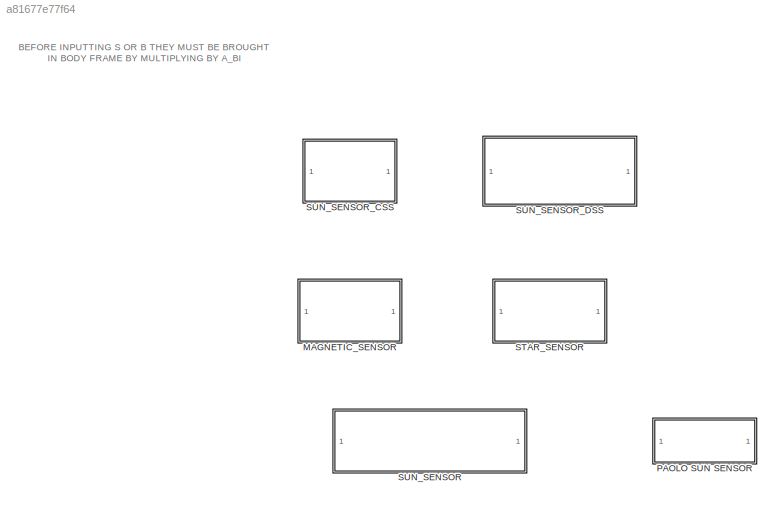
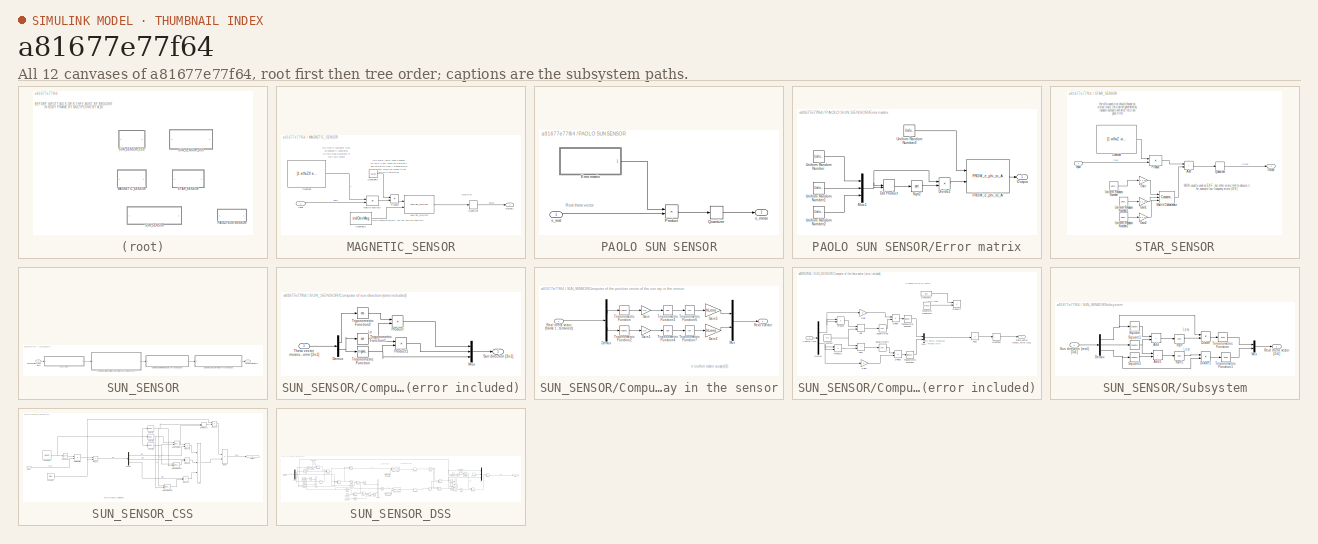
[diagram: thumbnail index - all 12 canvases of the model, root first then tree order]
MODEL slx_a81677e77f64
KIND library
CONFIG AbsTol = auto
CONFIG EnableMultiTasking = off
CONFIG FixedStep = auto
CONFIG MaxStep = auto
CONFIG MinStep = auto
CONFIG RelTol = 1e-3
CONFIG SampleTimeConstraint = Unconstrained
CONFIG SolverName = VariableStepAuto
CONFIG StartTime = 0.0
CONFIG StopTime = 10.0
BLOCK [SubSystem] MAGNETIC_SENSOR
  Ports = [1, 1]
  RequestExecContextInheritance = off
BLOCK [Constant] MAGNETIC_SENSOR/Constant
  Value = [1 alfaZX alfaYX; alfaZY 1 alfaXY; alfaYZ alfaXZ 1]
BLOCK [Constant] MAGNETIC_SENSOR/Constant1
  Value = stdDevMag
BLOCK [Constant] MAGNETIC_SENSOR/Constant2
  Value = cMag
BLOCK [Inport] MAGNETIC_SENSOR/Input
  IconDisplay = Signal name
BLOCK [Product] MAGNETIC_SENSOR/Matrix Multiply
  Multiplication = Matrix(*)
  Ports = [2, 1]
BLOCK [Outport] MAGNETIC_SENSOR/Output1
  IconDisplay = Signal name
BLOCK [Product] MAGNETIC_SENSOR/Product
  Ports = [2, 1]
BLOCK [Quantizer] MAGNETIC_SENSOR/Quantizer
  QuantizationInterval = resMag
BLOCK [Reference] MAGNETIC_SENSOR/WHITE_NOISE  REF=ERRORS/WHITE_NOISE
  Ports = [2, 1]
  SourceBlock = ERRORS/WHITE_NOISE
  SourceProductName = Errors
  SourceType = SubSystem
BLOCK [SubSystem] PAOLO SUN SENSOR
  Ports = [1, 1]
  RequestExecContextInheritance = off
BLOCK [SubSystem] PAOLO SUN SENSOR/Error matrix
  Ports = [0, 1]
  RequestExecContextInheritance = off
BLOCK [Product] PAOLO SUN SENSOR/Error matrix/Divide2
  Inputs = */
  Ports = [2, 1]
BLOCK [DotProduct] PAOLO SUN SENSOR/Error matrix/Dot Product
  OutDataTypeStr = Inherit: Inherit via internal rule
BLOCK [Reference] PAOLO SUN SENSOR/Error matrix/FROM_e_phi_to_A  REF=kinematic_transform/FROM_e_phi_to_A  (lib defined in slx_aea597a4063a)
  Ports = [2, 1]
  SourceBlock = kinematic_transform/FROM_e_phi_to_A
  SourceType = SubSystem
BLOCK [Mux] PAOLO SUN SENSOR/Error matrix/Mux1
  DisplayOption = bar
  Inputs = 3
  Ports = [3, 1]
BLOCK [Outport] PAOLO SUN SENSOR/Error matrix/Output
BLOCK [Sqrt] PAOLO SUN SENSOR/Error matrix/Sqrt2
BLOCK [UniformRandomNumber] PAOLO SUN SENSOR/Error matrix/Uniform Random Number
  Maximum = 10
  Minimum = -10
  SampleTime = 0.1
  Seed = 1
BLOCK [UniformRandomNumber] PAOLO SUN SENSOR/Error matrix/Uniform Random Number1
  Maximum = 10
  Minimum = -10
  SampleTime = 0.1
  Seed = 2
BLOCK [UniformRandomNumber] PAOLO SUN SENSOR/Error matrix/Uniform Random Number2
  Maximum = 10
  Minimum = -10
  SampleTime = 0.1
  Seed = 3
BLOCK [UniformRandomNumber] PAOLO SUN SENSOR/Error matrix/Uniform Random Number3
  Maximum = angleSun
  Minimum = -angleSun
  SampleTime = 0.1
  Seed = 10
BLOCK [Product] PAOLO SUN SENSOR/Product
  Multiplication = Matrix(*)
  Ports = [2, 1]
BLOCK [Quantizer] PAOLO SUN SENSOR/Quantizer
  QuantizationInterval = resSun
BLOCK [Outport] PAOLO SUN SENSOR/s_meas
BLOCK [Inport] PAOLO SUN SENSOR/s_real
BLOCK [SubSystem] STAR_SENSOR
  Ports = [1, 1]
  RequestExecContextInheritance = off
BLOCK [Sum] STAR_SENSOR/Add
  IconShape = rectangular
  Ports = [2, 1]
BLOCK [Constant] STAR_SENSOR/Constant
  Value = [1 alfaZ -alfaY; -alfaZ 1 alfaX; alfaY -alfaX 1]
BLOCK [Gain] STAR_SENSOR/Gain
  Gain = [1 1 1]
BLOCK [Gain] STAR_SENSOR/Gain1
  Gain = [1 1 1]
BLOCK [Gain] STAR_SENSOR/Gain2
  Gain = [1 1 1]
BLOCK [Inport] STAR_SENSOR/Input
  IconDisplay = Signal name
BLOCK [Concatenate] STAR_SENSOR/Matrix Concatenate
  ConcatenateDimension = 2
  Mode = Multidimensional array
  NumInputs = 3
  Ports = [3, 1]
BLOCK [Outport] STAR_SENSOR/Output
  IconDisplay = Signal name
BLOCK [Product] STAR_SENSOR/Product
  Multiplication = Matrix(*)
  Ports = [2, 1]
BLOCK [Quantizer] STAR_SENSOR/Quantizer
  QuantizationInterval = resStar
BLOCK [UniformRandomNumber] STAR_SENSOR/Uniform Random Number
  Maximum = maxStar
  Minimum = -maxStar
  SampleTime = 0.1
  Seed = 10
BLOCK [UniformRandomNumber] STAR_SENSOR/Uniform Random Number1
  Maximum = maxStar
  Minimum = -maxStar
  SampleTime = 0.1
  Seed = 8
BLOCK [UniformRandomNumber] STAR_SENSOR/Uniform Random Number2
  Maximum = maxStar
  Minimum = -maxStar
  SampleTime = 0.1
BLOCK [SubSystem] SUN_SENSOR
  Ports = [1, 1]
  RequestExecContextInheritance = off
BLOCK [SubSystem] SUN_SENSOR/Computer of sun direction (error included)
  Ports = [1, 1]
  RequestExecContextInheritance = off
BLOCK [Demux] SUN_SENSOR/Computer of sun direction (error included)/Demux
  Outputs = 2
  Ports = [1, 2]
BLOCK [Mux] SUN_SENSOR/Computer of sun direction (error included)/Mux
  DisplayOption = bar
  Inputs = 3
  Ports = [3, 1]
BLOCK [Product] SUN_SENSOR/Computer of sun direction (error included)/Product
  Ports = [2, 1]
BLOCK [Product] SUN_SENSOR/Computer of sun direction (error included)/Product1
  Ports = [2, 1]
BLOCK [Outport] SUN_SENSOR/Computer of sun direction (error included)/Sun direction [3x1]
BLOCK [Inport] SUN_SENSOR/Computer of sun direction (error included)/Theta vector measured with error [2x1]
BLOCK [Trigonometry] SUN_SENSOR/Computer of sun direction (error included)/Trigonometric Function
  Ports = [1, 1]
BLOCK [Trigonometry] SUN_SENSOR/Computer of sun direction (error included)/Trigonometric Function1
  Operator = cos
  Ports = [1, 1]
BLOCK [Trigonometry] SUN_SENSOR/Computer of sun direction (error included)/Trigonometric Function2
  Operator = cos
  Ports = [1, 1]
BLOCK [SubSystem] SUN_SENSOR/Computer of the position vector of the sun ray in the sensor
  Ports = [1, 1]
  RequestExecContextInheritance = off
BLOCK [Demux] SUN_SENSOR/Computer of the position vector of the sun ray in the sensor/Demux
  Outputs = 2
  Ports = [1, 2]
BLOCK [Gain] SUN_SENSOR/Computer of the position vector of the sun ray in the sensor/Gain
  Gain = 1/n
BLOCK [Gain] SUN_SENSOR/Computer of the position vector of the sun ray in the sensor/Gain1
  Gain = 1/n
BLOCK [Gain] SUN_SENSOR/Computer of the position vector of the sun ray in the sensor/Gain2
  Gain = hLens
BLOCK [Gain] SUN_SENSOR/Computer of the position vector of the sun ray in the sensor/Gain3
  Gain = hLens
BLOCK [Mux] SUN_SENSOR/Computer of the position vector of the sun ray in the sensor/Mux
  DisplayOption = bar
  Inputs = 2
  Ports = [2, 1]
BLOCK [Inport] SUN_SENSOR/Computer of the position vector of the sun ray in the sensor/Real theta vector (frame to be determined)
BLOCK [Outport] SUN_SENSOR/Computer of the position vector of the sun ray in the sensor/Real x vector
BLOCK [Trigonometry] SUN_SENSOR/Computer of the position vector of the sun ray in the sensor/Trigonometric Function
  Ports = [1, 1]
BLOCK [Trigonometry] SUN_SENSOR/Computer of the position vector of the sun ray in the sensor/Trigonometric Function2
  Ports = [1, 1]
BLOCK [Trigonometry] SUN_SENSOR/Computer of the position vector of the sun ray in the sensor/Trigonometric Function3
  Operator = asin
  Ports = [1, 1]
BLOCK [Trigonometry] SUN_SENSOR/Computer of the position vector of the sun ray in the sensor/Trigonometric Function4
  Operator = asin
  Ports = [1, 1]
BLOCK [Trigonometry] SUN_SENSOR/Computer of the position vector of the sun ray in the sensor/Trigonometric Function6
  Operator = tan
  Ports = [1, 1]
BLOCK [Trigonometry] SUN_SENSOR/Computer of the position vector of the sun ray in the sensor/Trigonometric Function7
  Operator = tan
  Ports = [1, 1]
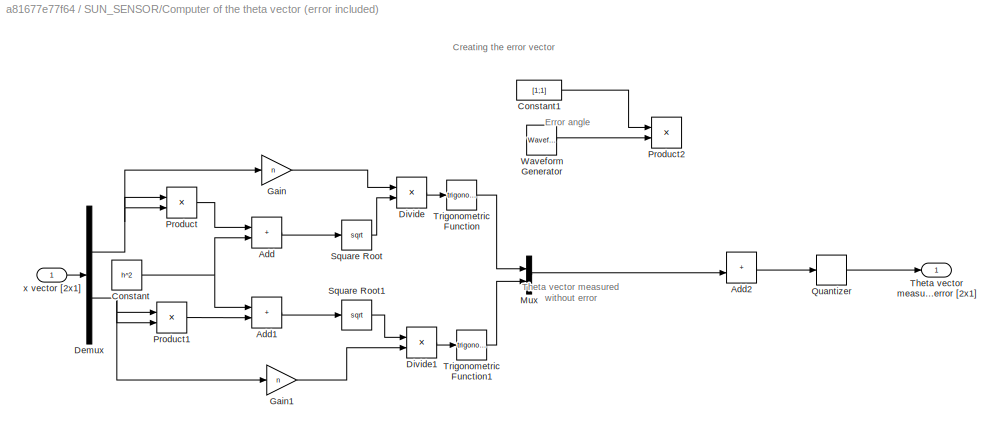
BLOCK [SubSystem] SUN_SENSOR/Computer of the theta vector (error included)
  Ports = [1, 1]
  RequestExecContextInheritance = off
BLOCK [Sum] SUN_SENSOR/Computer of the theta vector (error included)/Add
  IconShape = rectangular
  Ports = [2, 1]
BLOCK [Sum] SUN_SENSOR/Computer of the theta vector (error included)/Add1
  IconShape = rectangular
  Ports = [2, 1]
BLOCK [Sum] SUN_SENSOR/Computer of the theta vector (error included)/Add2
  IconShape = rectangular
  Ports = [2, 1]
BLOCK [Constant] SUN_SENSOR/Computer of the theta vector (error included)/Constant
  Value = h^2
BLOCK [Constant] SUN_SENSOR/Computer of the theta vector (error included)/Constant1
  Value = [1;1]
BLOCK [Demux] SUN_SENSOR/Computer of the theta vector (error included)/Demux
  Outputs = 2
  Ports = [1, 2]
BLOCK [Product] SUN_SENSOR/Computer of the theta vector (error included)/Divide
  Inputs = */
  Ports = [2, 1]
BLOCK [Product] SUN_SENSOR/Computer of the theta vector (error included)/Divide1
  Inputs = /*
  Ports = [2, 1]
BLOCK [Gain] SUN_SENSOR/Computer of the theta vector (error included)/Gain
  Gain = n
BLOCK [Gain] SUN_SENSOR/Computer of the theta vector (error included)/Gain1
  Gain = n
BLOCK [Mux] SUN_SENSOR/Computer of the theta vector (error included)/Mux
  DisplayOption = bar
  Inputs = 2
  Ports = [2, 1]
BLOCK [Product] SUN_SENSOR/Computer of the theta vector (error included)/Product
  Ports = [2, 1]
BLOCK [Product] SUN_SENSOR/Computer of the theta vector (error included)/Product1
  Ports = [2, 1]
BLOCK [Product] SUN_SENSOR/Computer of the theta vector (error included)/Product2
  Ports = [2, 1]
BLOCK [Quantizer] SUN_SENSOR/Computer of the theta vector (error included)/Quantizer
  QuantizationInterval = res
BLOCK [Sqrt] SUN_SENSOR/Computer of the theta vector (error included)/Square Root
BLOCK [Sqrt] SUN_SENSOR/Computer of the theta vector (error included)/Square Root1
BLOCK [Outport] SUN_SENSOR/Computer of the theta vector (error included)/Theta vector measured with error [2x1]
BLOCK [Trigonometry] SUN_SENSOR/Computer of the theta vector (error included)/Trigonometric Function
  Ports = [1, 1]
BLOCK [Trigonometry] SUN_SENSOR/Computer of the theta vector (error included)/Trigonometric Function1
  Ports = [1, 1]
BLOCK [Reference] SUN_SENSOR/Computer of the theta vector (error included)/Waveform Generator  REF=simulink/Sources/Waveform
Generator
  Ports = [0, 1]
  SourceBlock = simulink/Sources/Waveform\nGenerator
  SourceProductBaseCode = SL
  SourceType = WaveformGenerator
BLOCK [Inport] SUN_SENSOR/Computer of the theta vector (error included)/x vector [2x1]
BLOCK [SubSystem] SUN_SENSOR/Subsystem
  Ports = [1, 1]
  RequestExecContextInheritance = off
BLOCK [Sum] SUN_SENSOR/Subsystem/Add
  IconShape = rectangular
  Ports = [2, 1]
BLOCK [Sum] SUN_SENSOR/Subsystem/Add1
  IconShape = rectangular
  Ports = [2, 1]
BLOCK [Demux] SUN_SENSOR/Subsystem/Demux
  Outputs = 3
  Ports = [1, 3]
BLOCK [Product] SUN_SENSOR/Subsystem/Divide
  Inputs = /*
  Ports = [2, 1]
BLOCK [Product] SUN_SENSOR/Subsystem/Divide1
  Inputs = /*
  Ports = [2, 1]
BLOCK [Mux] SUN_SENSOR/Subsystem/Mux
  DisplayOption = bar
  Inputs = 2
  Ports = [2, 1]
BLOCK [Outport] SUN_SENSOR/Subsystem/Real theta vector [2x1]
BLOCK [Sqrt] SUN_SENSOR/Subsystem/Sqrt
BLOCK [Sqrt] SUN_SENSOR/Subsystem/Sqrt1
BLOCK [Math] SUN_SENSOR/Subsystem/Square
  Operator = square
  Ports = [1, 1]
BLOCK [Math] SUN_SENSOR/Subsystem/Square1
  Operator = square
  Ports = [1, 1]
BLOCK [Math] SUN_SENSOR/Subsystem/Square2
  Operator = square
  Ports = [1, 1]
BLOCK [Inport] SUN_SENSOR/Subsystem/Sun direction (real) [3x1]
BLOCK [Trigonometry] SUN_SENSOR/Subsystem/Trigonometric Function
  Operator = acos
  Ports = [1, 1]
BLOCK [Trigonometry] SUN_SENSOR/Subsystem/Trigonometric Function1
  Operator = acos
  Ports = [1, 1]
BLOCK [Inport] SUN_SENSOR/Sun direction (real) [3x1]
BLOCK [Outport] SUN_SENSOR/Sun direction [3x1]
BLOCK [SubSystem] SUN_SENSOR_CSS
  Ports = [1, 1]
  RequestExecContextInheritance = off
BLOCK [Sum] SUN_SENSOR_CSS/Add
  IconShape = rectangular
  Inputs = +++
  Ports = [3, 1]
BLOCK [Constant] SUN_SENSOR_CSS/Constant
  Value = Imax
BLOCK [Constant] SUN_SENSOR_CSS/Constant1
  Value = Nsens
BLOCK [Reference] SUN_SENSOR_CSS/Cross Product  REF=matrix_library/Cross Product
  Ports = [2, 1]
  SourceBlock = matrix_library/Cross Product
  SourceProductBaseCode = SL
  SourceType = CrossProduct
BLOCK [Reference] SUN_SENSOR_CSS/Cross Product1  REF=matrix_library/Cross Product
  Ports = [2, 1]
  SourceBlock = matrix_library/Cross Product
  SourceProductBaseCode = SL
  SourceType = CrossProduct
BLOCK [Reference] SUN_SENSOR_CSS/Cross Product2  REF=matrix_library/Cross Product
  Ports = [2, 1]
  SourceBlock = matrix_library/Cross Product
  SourceProductBaseCode = SL
  SourceType = CrossProduct
BLOCK [Demux] SUN_SENSOR_CSS/Demux
  Outputs = 3
  Ports = [1, 3]
BLOCK [Product] SUN_SENSOR_CSS/Divide
  Inputs = /*
  Ports = [2, 1]
BLOCK [DotProduct] SUN_SENSOR_CSS/Dot Product
  OutDataTypeStr = Inherit: Inherit via internal rule
BLOCK [Inport] SUN_SENSOR_CSS/Input
  IconDisplay = Signal name
BLOCK [Product] SUN_SENSOR_CSS/Matrix Multiply
  Multiplication = Matrix(*)
  Ports = [2, 1]
BLOCK [Outport] SUN_SENSOR_CSS/Output
  IconDisplay = Signal name
BLOCK [Product] SUN_SENSOR_CSS/Product
  Ports = [2, 1]
BLOCK [Product] SUN_SENSOR_CSS/Product1
  Ports = [2, 1]
BLOCK [Product] SUN_SENSOR_CSS/Product2
  Ports = [2, 1]
BLOCK [Product] SUN_SENSOR_CSS/Product3
  Ports = [2, 1]
BLOCK [Product] SUN_SENSOR_CSS/Product4
  Ports = [2, 1]
BLOCK [Selector] SUN_SENSOR_CSS/Selector
  IndexOptions = Select all,Index vector (dialog)
  Indices = 1,1
  InputPortWidth = 3
  NumberOfDimensions = 2
  OutputSizes = 1,1
  Ports = [1, 1]
BLOCK [Selector] SUN_SENSOR_CSS/Selector1
  IndexOptions = Select all,Index vector (dialog)
  Indices = 1,2
  InputPortWidth = 3
  NumberOfDimensions = 2
  OutputSizes = 1,1
  Ports = [1, 1]
BLOCK [Selector] SUN_SENSOR_CSS/Selector2
  IndexOptions = Select all,Index vector (dialog)
  Indices = 1,3
  InputPortWidth = 3
  NumberOfDimensions = 2
  OutputSizes = 1,1
  Ports = [1, 1]
BLOCK [Math] SUN_SENSOR_CSS/Transpose
  Operator = transpose
  Ports = [1, 1]
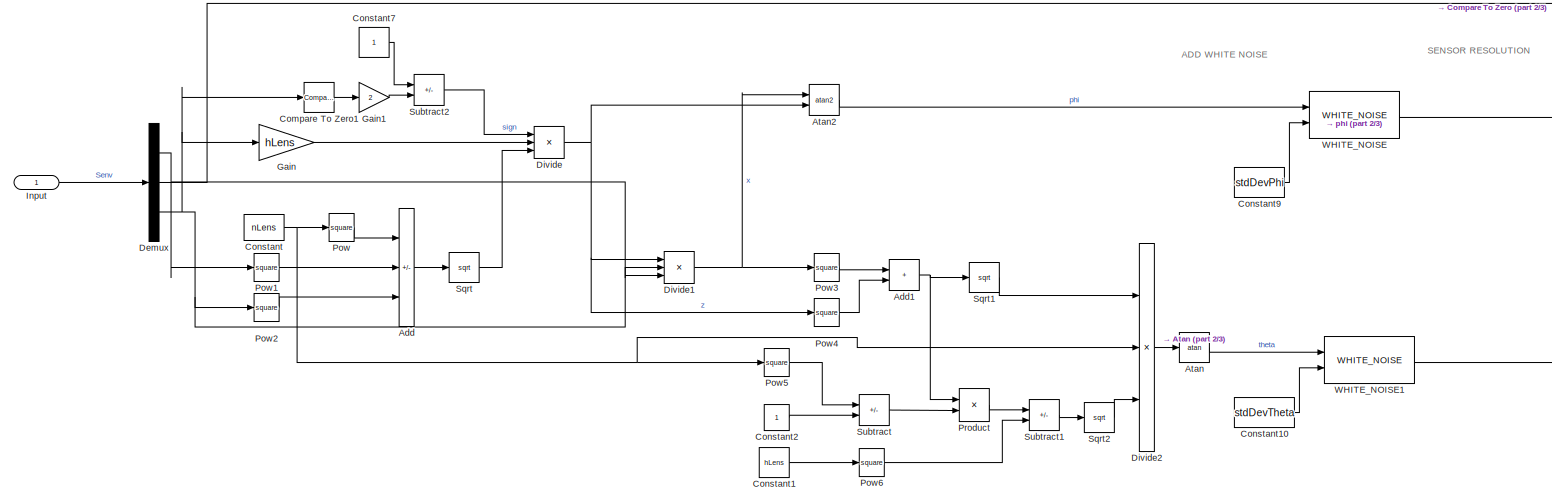
[diagram: SUN_SENSOR_DSS - part 1/3, left side, full height]
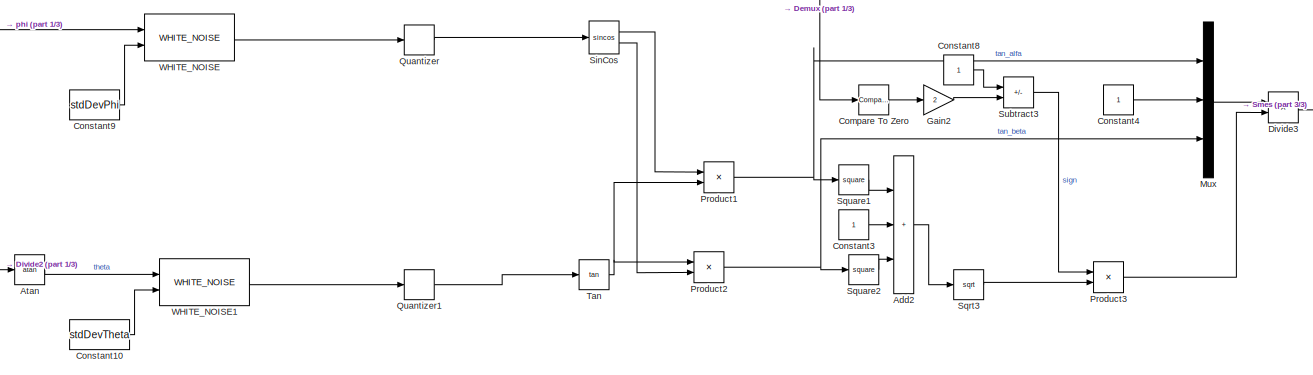
[diagram: SUN_SENSOR_DSS - part 2/3, central region]
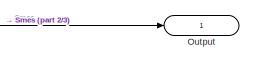
[diagram: SUN_SENSOR_DSS - part 3/3, middle right region]
BLOCK [SubSystem] SUN_SENSOR_DSS
  Ports = [1, 1]
  RequestExecContextInheritance = off
BLOCK [Sum] SUN_SENSOR_DSS/Add
  IconShape = rectangular
  Inputs = +--
  Ports = [3, 1]
BLOCK [Sum] SUN_SENSOR_DSS/Add1
  IconShape = rectangular
  Ports = [2, 1]
BLOCK [Sum] SUN_SENSOR_DSS/Add2
  IconShape = rectangular
  Inputs = +++
  Ports = [3, 1]
BLOCK [Trigonometry] SUN_SENSOR_DSS/Atan
  Operator = atan
  Ports = [1, 1]
BLOCK [Trigonometry] SUN_SENSOR_DSS/Atan2
  Operator = atan2
  Ports = [2, 1]
BLOCK [Reference] SUN_SENSOR_DSS/Compare To Zero  REF=simulink/Logic and Bit
Operations/Compare
To Zero
  Ports = [1, 1]
  SourceBlock = simulink/Logic and Bit\nOperations/Compare\nTo Zero
  SourceProductBaseCode = SL
  SourceType = Compare To Zero
BLOCK [Reference] SUN_SENSOR_DSS/Compare To Zero1  REF=simulink/Logic and Bit
Operations/Compare
To Zero
  Ports = [1, 1]
  SourceBlock = simulink/Logic and Bit\nOperations/Compare\nTo Zero
  SourceProductBaseCode = SL
  SourceType = Compare To Zero
BLOCK [Constant] SUN_SENSOR_DSS/Constant
  Value = nLens
BLOCK [Constant] SUN_SENSOR_DSS/Constant1
  Value = hLens
BLOCK [Constant] SUN_SENSOR_DSS/Constant10
  Value = stdDevTheta
BLOCK [Constant] SUN_SENSOR_DSS/Constant2
BLOCK [Constant] SUN_SENSOR_DSS/Constant3
BLOCK [Constant] SUN_SENSOR_DSS/Constant4
BLOCK [Constant] SUN_SENSOR_DSS/Constant7
BLOCK [Constant] SUN_SENSOR_DSS/Constant8
BLOCK [Constant] SUN_SENSOR_DSS/Constant9
  Value = stdDevPhi
BLOCK [Demux] SUN_SENSOR_DSS/Demux
  Outputs = 3
  Ports = [1, 3]
BLOCK [Product] SUN_SENSOR_DSS/Divide
  Inputs = **/
  Ports = [3, 1]
BLOCK [Product] SUN_SENSOR_DSS/Divide1
  Inputs = **/
  Ports = [3, 1]
BLOCK [Product] SUN_SENSOR_DSS/Divide2
  Inputs = **/
  Ports = [3, 1]
BLOCK [Product] SUN_SENSOR_DSS/Divide3
  Inputs = */
  Ports = [2, 1]
BLOCK [Gain] SUN_SENSOR_DSS/Gain
  Gain = hLens
BLOCK [Gain] SUN_SENSOR_DSS/Gain1
  Gain = 2
BLOCK [Gain] SUN_SENSOR_DSS/Gain2
  Gain = 2
BLOCK [Inport] SUN_SENSOR_DSS/Input
  IconDisplay = Signal name
BLOCK [Mux] SUN_SENSOR_DSS/Mux
  DisplayOption = bar
  Inputs = 3
  Ports = [3, 1]
BLOCK [Outport] SUN_SENSOR_DSS/Output
  IconDisplay = Signal name
BLOCK [Math] SUN_SENSOR_DSS/Pow
  Operator = square
  Ports = [1, 1]
  RndMeth = Zero
  SignedPower = on
BLOCK [Math] SUN_SENSOR_DSS/Pow1
  Operator = square
  Ports = [1, 1]
  RndMeth = Zero
  SignedPower = on
BLOCK [Math] SUN_SENSOR_DSS/Pow2
  Operator = square
  Ports = [1, 1]
  RndMeth = Zero
  SignedPower = on
BLOCK [Math] SUN_SENSOR_DSS/Pow3
  Operator = square
  Ports = [1, 1]
  RndMeth = Zero
  SignedPower = on
BLOCK [Math] SUN_SENSOR_DSS/Pow4
  Operator = square
  Ports = [1, 1]
  RndMeth = Zero
  SignedPower = on
BLOCK [Math] SUN_SENSOR_DSS/Pow5
  Operator = square
  Ports = [1, 1]
  RndMeth = Zero
  SignedPower = on
BLOCK [Math] SUN_SENSOR_DSS/Pow6
  Operator = square
  Ports = [1, 1]
  RndMeth = Zero
  SignedPower = on
BLOCK [Product] SUN_SENSOR_DSS/Product
  Ports = [2, 1]
BLOCK [Product] SUN_SENSOR_DSS/Product1
  Ports = [2, 1]
BLOCK [Product] SUN_SENSOR_DSS/Product2
  Ports = [2, 1]
BLOCK [Product] SUN_SENSOR_DSS/Product3
  Ports = [2, 1]
BLOCK [Quantizer] SUN_SENSOR_DSS/Quantizer
  QuantizationInterval = resPhi
BLOCK [Quantizer] SUN_SENSOR_DSS/Quantizer1
  QuantizationInterval = resTheta
BLOCK [Trigonometry] SUN_SENSOR_DSS/SinCos
  Operator = sincos
  Ports = [1, 2]
BLOCK [Sqrt] SUN_SENSOR_DSS/Sqrt
BLOCK [Sqrt] SUN_SENSOR_DSS/Sqrt1
BLOCK [Sqrt] SUN_SENSOR_DSS/Sqrt2
BLOCK [Sqrt] SUN_SENSOR_DSS/Sqrt3
BLOCK [Math] SUN_SENSOR_DSS/Square1
  Operator = square
  Ports = [1, 1]
BLOCK [Math] SUN_SENSOR_DSS/Square2
  Operator = square
  Ports = [1, 1]
BLOCK [Sum] SUN_SENSOR_DSS/Subtract
  IconShape = rectangular
  Inputs = +-
  Ports = [2, 1]
BLOCK [Sum] SUN_SENSOR_DSS/Subtract1
  IconShape = rectangular
  Inputs = -+
  Ports = [2, 1]
BLOCK [Sum] SUN_SENSOR_DSS/Subtract2
  IconShape = rectangular
  Inputs = -+
  Ports = [2, 1]
BLOCK [Sum] SUN_SENSOR_DSS/Subtract3
  IconShape = rectangular
  Inputs = -+
  Ports = [2, 1]
BLOCK [Trigonometry] SUN_SENSOR_DSS/Tan
  Operator = tan
  Ports = [1, 1]
BLOCK [Reference] SUN_SENSOR_DSS/WHITE_NOISE  REF=ERRORS/WHITE_NOISE
  Ports = [2, 1]
  SourceBlock = ERRORS/WHITE_NOISE
  SourceProductName = Errors
  SourceType = SubSystem
BLOCK [Reference] SUN_SENSOR_DSS/WHITE_NOISE1  REF=ERRORS/WHITE_NOISE
  Ports = [2, 1]
  SourceBlock = ERRORS/WHITE_NOISE
  SourceProductName = Errors
  SourceType = SubSystem
ANNOTATION (root): BEFORE INPUTTING S OR B THEY MUST BE BROUGHT IN BODY FRAME BY MULTIPLYING BY A_BI
ANNOTATION MAGNETIC_SENSOR: resolution
ANNOTATION MAGNETIC_SENSOR: this matrix represent cross orthogonality generated by the wrong placement of the 3 axis sensor
ANNOTATION MAGNETIC_SENSOR: this scalar factor should depend on the B itself showing hysteresis and saturation->really magnetometer parameter should be chosen to not arrive to saturation
ANNOTATION MAGNETIC_SENSOR: white gaussian noise? I am not sure we need this
ANNOTATION PAOLO SUN SENSOR: Real theta vector
ANNOTATION STAR_SENSOR: WGN usually used on EKF, but other errors tend to obscure it for example low frequency errors (LFE)
ANNOTATION STAR_SENSOR: the alfa quantities should change as a slow walk, this can be generated by random numbers and after this low pass filter
ANNOTATION SUN_SENSOR/Computer of sun direction (error included): Lp
ANNOTATION SUN_SENSOR/Computer of the position vector of the sun ray in the sensor: n is often taken as sqrt(3)
ANNOTATION SUN_SENSOR/Computer of the theta vector (error included): Creating the error vector
ANNOTATION SUN_SENSOR/Computer of the theta vector (error included): Error angle
ANNOTATION SUN_SENSOR/Computer of the theta vector (error included): Theta vector measured without error
ANNOTATION SUN_SENSOR/Subsystem: Lpxy
ANNOTATION SUN_SENSOR/Subsystem: Lpyz
ANNOTATION SUN_SENSOR_CSS: albedo can introduce low filter errors
ANNOTATION SUN_SENSOR_DSS: ADD WHITE NOISE
ANNOTATION SUN_SENSOR_DSS: SENSOR RESOLUTION
LINE MAGNETIC_SENSOR/Constant1:1 -> MAGNETIC_SENSOR/WHITE_NOISE:2
LINE MAGNETIC_SENSOR/Constant2:1 -> MAGNETIC_SENSOR/Product:1
LINE MAGNETIC_SENSOR/Constant:1 -> MAGNETIC_SENSOR/Matrix Multiply:1
LINE MAGNETIC_SENSOR/Input:1 -> MAGNETIC_SENSOR/Matrix Multiply:2
LINE MAGNETIC_SENSOR/Matrix Multiply:1 -> MAGNETIC_SENSOR/Product:2
LINE MAGNETIC_SENSOR/Product:1 -> MAGNETIC_SENSOR/WHITE_NOISE:1
LINE MAGNETIC_SENSOR/Quantizer:1 -> MAGNETIC_SENSOR/Output1:1
LINE MAGNETIC_SENSOR/WHITE_NOISE:1 -> MAGNETIC_SENSOR/Quantizer:1
LINE PAOLO SUN SENSOR/Error matrix/Divide2:1 -> PAOLO SUN SENSOR/Error matrix/FROM_e_phi_to_A:2
LINE PAOLO SUN SENSOR/Error matrix/Dot Product:1 -> PAOLO SUN SENSOR/Error matrix/Sqrt2:1
LINE PAOLO SUN SENSOR/Error matrix/FROM_e_phi_to_A:1 -> PAOLO SUN SENSOR/Error matrix/Output:1
NET PAOLO SUN SENSOR/Error matrix/Mux1:1 -> PAOLO SUN SENSOR/Error matrix/Divide2:1, PAOLO SUN SENSOR/Error matrix/Dot Product:1, PAOLO SUN SENSOR/Error matrix/Dot Product:2
LINE PAOLO SUN SENSOR/Error matrix/Sqrt2:1 -> PAOLO SUN SENSOR/Error matrix/Divide2:2
LINE PAOLO SUN SENSOR/Error matrix/Uniform Random Number1:1 -> PAOLO SUN SENSOR/Error matrix/Mux1:2
LINE PAOLO SUN SENSOR/Error matrix/Uniform Random Number2:1 -> PAOLO SUN SENSOR/Error matrix/Mux1:3
LINE PAOLO SUN SENSOR/Error matrix/Uniform Random Number3:1 -> PAOLO SUN SENSOR/Error matrix/FROM_e_phi_to_A:1
LINE PAOLO SUN SENSOR/Error matrix/Uniform Random Number:1 -> PAOLO SUN SENSOR/Error matrix/Mux1:1
LINE PAOLO SUN SENSOR/Error matrix:1 -> PAOLO SUN SENSOR/Product:1
LINE PAOLO SUN SENSOR/Product:1 -> PAOLO SUN SENSOR/Quantizer:1
LINE PAOLO SUN SENSOR/Quantizer:1 -> PAOLO SUN SENSOR/s_meas:1
LINE PAOLO SUN SENSOR/s_real:1 -> PAOLO SUN SENSOR/Product:2
LINE STAR_SENSOR/Add:1 -> STAR_SENSOR/Quantizer:1
LINE STAR_SENSOR/Constant:1 -> STAR_SENSOR/Product:1
LINE STAR_SENSOR/Gain1:1 -> STAR_SENSOR/Matrix Concatenate:2
LINE STAR_SENSOR/Gain2:1 -> STAR_SENSOR/Matrix Concatenate:3
LINE STAR_SENSOR/Gain:1 -> STAR_SENSOR/Matrix Concatenate:1
LINE STAR_SENSOR/Input:1 -> STAR_SENSOR/Product:2
LINE STAR_SENSOR/Matrix Concatenate:1 -> STAR_SENSOR/Add:2
LINE STAR_SENSOR/Product:1 -> STAR_SENSOR/Add:1
LINE STAR_SENSOR/Quantizer:1 -> STAR_SENSOR/Output:1
LINE STAR_SENSOR/Uniform Random Number1:1 -> STAR_SENSOR/Gain1:1
LINE STAR_SENSOR/Uniform Random Number2:1 -> STAR_SENSOR/Gain2:1
LINE STAR_SENSOR/Uniform Random Number:1 -> STAR_SENSOR/Gain:1
LINE SUN_SENSOR/Computer of sun direction (error included)/Demux:1 -> SUN_SENSOR/Computer of sun direction (error included)/Trigonometric Function2:1
NET SUN_SENSOR/Computer of sun direction (error included)/Demux:2 -> SUN_SENSOR/Computer of sun direction (error included)/Trigonometric Function1:1, SUN_SENSOR/Computer of sun direction (error included)/Trigonometric Function:1
LINE SUN_SENSOR/Computer of sun direction (error included)/Mux:1 -> SUN_SENSOR/Computer of sun direction (error included)/Sun direction [3x1]:1
LINE SUN_SENSOR/Computer of sun direction (error included)/Product1:1 -> SUN_SENSOR/Computer of sun direction (error included)/Mux:2
LINE SUN_SENSOR/Computer of sun direction (error included)/Product:1 -> SUN_SENSOR/Computer of sun direction (error included)/Mux:1
LINE SUN_SENSOR/Computer of sun direction (error included)/Theta vector measured with error [2x1]:1 -> SUN_SENSOR/Computer of sun direction (error included)/Demux:1
NET SUN_SENSOR/Computer of sun direction (error included)/Trigonometric Function1:1 -> SUN_SENSOR/Computer of sun direction (error included)/Product1:1, SUN_SENSOR/Computer of sun direction (error included)/Product:2
LINE SUN_SENSOR/Computer of sun direction (error included)/Trigonometric Function2:1 -> SUN_SENSOR/Computer of sun direction (error included)/Product:1
NET SUN_SENSOR/Computer of sun direction (error included)/Trigonometric Function:1 -> SUN_SENSOR/Computer of sun direction (error included)/Mux:3, SUN_SENSOR/Computer of sun direction (error included)/Product1:2
LINE SUN_SENSOR/Computer of sun direction (error included):1 -> SUN_SENSOR/Sun direction [3x1]:1
LINE SUN_SENSOR/Computer of the position vector of the sun ray in the sensor/Demux:1 -> SUN_SENSOR/Computer of the position vector of the sun ray in the sensor/Trigonometric Function:1
LINE SUN_SENSOR/Computer of the position vector of the sun ray in the sensor/Demux:2 -> SUN_SENSOR/Computer of the position vector of the sun ray in the sensor/Trigonometric Function2:1
LINE SUN_SENSOR/Computer of the position vector of the sun ray in the sensor/Gain1:1 -> SUN_SENSOR/Computer of the position vector of the sun ray in the sensor/Trigonometric Function4:1
LINE SUN_SENSOR/Computer of the position vector of the sun ray in the sensor/Gain2:1 -> SUN_SENSOR/Computer of the position vector of the sun ray in the sensor/Mux:2
LINE SUN_SENSOR/Computer of the position vector of the sun ray in the sensor/Gain3:1 -> SUN_SENSOR/Computer of the position vector of the sun ray in the sensor/Mux:1
LINE SUN_SENSOR/Computer of the position vector of the sun ray in the sensor/Gain:1 -> SUN_SENSOR/Computer of the position vector of the sun ray in the sensor/Trigonometric Function3:1
LINE SUN_SENSOR/Computer of the position vector of the sun ray in the sensor/Mux:1 -> SUN_SENSOR/Computer of the position vector of the sun ray in the sensor/Real x vector:1
LINE SUN_SENSOR/Computer of the position vector of the sun ray in the sensor/Real theta vector (frame to be determined):1 -> SUN_SENSOR/Computer of the position vector of the sun ray in the sensor/Demux:1
LINE SUN_SENSOR/Computer of the position vector of the sun ray in the sensor/Trigonometric Function2:1 -> SUN_SENSOR/Computer of the position vector of the sun ray in the sensor/Gain1:1
LINE SUN_SENSOR/Computer of the position vector of the sun ray in the sensor/Trigonometric Function3:1 -> SUN_SENSOR/Computer of the position vector of the sun ray in the sensor/Trigonometric Function6:1
LINE SUN_SENSOR/Computer of the position vector of the sun ray in the sensor/Trigonometric Function4:1 -> SUN_SENSOR/Computer of the position vector of the sun ray in the sensor/Trigonometric Function7:1
LINE SUN_SENSOR/Computer of the position vector of the sun ray in the sensor/Trigonometric Function6:1 -> SUN_SENSOR/Computer of the position vector of the sun ray in the sensor/Gain3:1
LINE SUN_SENSOR/Computer of the position vector of the sun ray in the sensor/Trigonometric Function7:1 -> SUN_SENSOR/Computer of the position vector of the sun ray in the sensor/Gain2:1
LINE SUN_SENSOR/Computer of the position vector of the sun ray in the sensor/Trigonometric Function:1 -> SUN_SENSOR/Computer of the position vector of the sun ray in the sensor/Gain:1
LINE SUN_SENSOR/Computer of the position vector of the sun ray in the sensor:1 -> SUN_SENSOR/Computer of the theta vector (error included):1
LINE SUN_SENSOR/Computer of the theta vector (error included)/Add1:1 -> SUN_SENSOR/Computer of the theta vector (error included)/Square Root1:1
LINE SUN_SENSOR/Computer of the theta vector (error included)/Add2:1 -> SUN_SENSOR/Computer of the theta vector (error included)/Quantizer:1
LINE SUN_SENSOR/Computer of the theta vector (error included)/Add:1 -> SUN_SENSOR/Computer of the theta vector (error included)/Square Root:1
LINE SUN_SENSOR/Computer of the theta vector (error included)/Constant1:1 -> SUN_SENSOR/Computer of the theta vector (error included)/Product2:1
NET SUN_SENSOR/Computer of the theta vector (error included)/Constant:1 -> SUN_SENSOR/Computer of the theta vector (error included)/Add1:1, SUN_SENSOR/Computer of the theta vector (error included)/Add:2
NET SUN_SENSOR/Computer of the theta vector (error included)/Demux:1 -> SUN_SENSOR/Computer of the theta vector (error included)/Gain:1, SUN_SENSOR/Computer of the theta vector (error included)/Product:1, SUN_SENSOR/Computer of the theta vector (error included)/Product:2
NET SUN_SENSOR/Computer of the theta vector (error included)/Demux:2 -> SUN_SENSOR/Computer of the theta vector (error included)/Gain1:1, SUN_SENSOR/Computer of the theta vector (error included)/Product1:1, SUN_SENSOR/Computer of the theta vector (error included)/Product1:2
LINE SUN_SENSOR/Computer of the theta vector (error included)/Divide1:1 -> SUN_SENSOR/Computer of the theta vector (error included)/Trigonometric Function1:1
LINE SUN_SENSOR/Computer of the theta vector (error included)/Divide:1 -> SUN_SENSOR/Computer of the theta vector (error included)/Trigonometric Function:1
LINE SUN_SENSOR/Computer of the theta vector (error included)/Gain1:1 -> SUN_SENSOR/Computer of the theta vector (error included)/Divide1:2
LINE SUN_SENSOR/Computer of the theta vector (error included)/Gain:1 -> SUN_SENSOR/Computer of the theta vector (error included)/Divide:1
LINE SUN_SENSOR/Computer of the theta vector (error included)/Mux:1 -> SUN_SENSOR/Computer of the theta vector (error included)/Add2:2
LINE SUN_SENSOR/Computer of the theta vector (error included)/Product1:1 -> SUN_SENSOR/Computer of the theta vector (error included)/Add1:2
LINE SUN_SENSOR/Computer of the theta vector (error included)/Product:1 -> SUN_SENSOR/Computer of the theta vector (error included)/Add:1
LINE SUN_SENSOR/Computer of the theta vector (error included)/Quantizer:1 -> SUN_SENSOR/Computer of the theta vector (error included)/Theta vector measured with error [2x1]:1
LINE SUN_SENSOR/Computer of the theta vector (error included)/Square Root1:1 -> SUN_SENSOR/Computer of the theta vector (error included)/Divide1:1
LINE SUN_SENSOR/Computer of the theta vector (error included)/Square Root:1 -> SUN_SENSOR/Computer of the theta vector (error included)/Divide:2
LINE SUN_SENSOR/Computer of the theta vector (error included)/Trigonometric Function1:1 -> SUN_SENSOR/Computer of the theta vector (error included)/Mux:2
LINE SUN_SENSOR/Computer of the theta vector (error included)/Trigonometric Function:1 -> SUN_SENSOR/Computer of the theta vector (error included)/Mux:1
LINE SUN_SENSOR/Computer of the theta vector (error included)/Waveform Generator:1 -> SUN_SENSOR/Computer of the theta vector (error included)/Product2:2
LINE SUN_SENSOR/Computer of the theta vector (error included)/x vector [2x1]:1 -> SUN_SENSOR/Computer of the theta vector (error included)/Demux:1
LINE SUN_SENSOR/Computer of the theta vector (error included):1 -> SUN_SENSOR/Computer of sun direction (error included):1
LINE SUN_SENSOR/Subsystem/Add1:1 -> SUN_SENSOR/Subsystem/Sqrt1:1
LINE SUN_SENSOR/Subsystem/Add:1 -> SUN_SENSOR/Subsystem/Sqrt:1
NET SUN_SENSOR/Subsystem/Demux:1 -> SUN_SENSOR/Subsystem/Divide:1, SUN_SENSOR/Subsystem/Square:1
LINE SUN_SENSOR/Subsystem/Demux:2 -> SUN_SENSOR/Subsystem/Square1:1
NET SUN_SENSOR/Subsystem/Demux:3 -> SUN_SENSOR/Subsystem/Divide1:2, SUN_SENSOR/Subsystem/Square2:1
LINE SUN_SENSOR/Subsystem/Divide1:1 -> SUN_SENSOR/Subsystem/Trigonometric Function1:1
LINE SUN_SENSOR/Subsystem/Divide:1 -> SUN_SENSOR/Subsystem/Trigonometric Function:1
LINE SUN_SENSOR/Subsystem/Mux:1 -> SUN_SENSOR/Subsystem/Real theta vector [2x1]:1
LINE SUN_SENSOR/Subsystem/Sqrt1:1 -> SUN_SENSOR/Subsystem/Divide1:1
LINE SUN_SENSOR/Subsystem/Sqrt:1 -> SUN_SENSOR/Subsystem/Divide:2
NET SUN_SENSOR/Subsystem/Square1:1 -> SUN_SENSOR/Subsystem/Add1:1, SUN_SENSOR/Subsystem/Add:2
LINE SUN_SENSOR/Subsystem/Square2:1 -> SUN_SENSOR/Subsystem/Add1:2
LINE SUN_SENSOR/Subsystem/Square:1 -> SUN_SENSOR/Subsystem/Add:1
LINE SUN_SENSOR/Subsystem/Sun direction (real) [3x1]:1 -> SUN_SENSOR/Subsystem/Demux:1
LINE SUN_SENSOR/Subsystem/Trigonometric Function1:1 -> SUN_SENSOR/Subsystem/Mux:2
LINE SUN_SENSOR/Subsystem/Trigonometric Function:1 -> SUN_SENSOR/Subsystem/Mux:1
LINE SUN_SENSOR/Subsystem:1 -> SUN_SENSOR/Computer of the position vector of the sun ray in the sensor:1
LINE SUN_SENSOR/Sun direction (real) [3x1]:1 -> SUN_SENSOR/Subsystem:1
LINE SUN_SENSOR_CSS/Add:1 -> SUN_SENSOR_CSS/Divide:2
NET SUN_SENSOR_CSS/Constant1:1 -> SUN_SENSOR_CSS/Selector1:1, SUN_SENSOR_CSS/Selector2:1, SUN_SENSOR_CSS/Selector:1, SUN_SENSOR_CSS/Transpose:1
NET SUN_SENSOR_CSS/Constant:1 -> SUN_SENSOR_CSS/Product4:1, SUN_SENSOR_CSS/Product:2
LINE SUN_SENSOR_CSS/Cross Product1:1 -> SUN_SENSOR_CSS/Product2:2
LINE SUN_SENSOR_CSS/Cross Product2:1 -> SUN_SENSOR_CSS/Product3:2
NET SUN_SENSOR_CSS/Cross Product:1 -> SUN_SENSOR_CSS/Dot Product:2, SUN_SENSOR_CSS/Product1:1
LINE SUN_SENSOR_CSS/Demux:1 -> SUN_SENSOR_CSS/Product1:2
LINE SUN_SENSOR_CSS/Demux:2 -> SUN_SENSOR_CSS/Product2:1
LINE SUN_SENSOR_CSS/Demux:3 -> SUN_SENSOR_CSS/Product3:1
LINE SUN_SENSOR_CSS/Divide:1 -> SUN_SENSOR_CSS/Output:1
LINE SUN_SENSOR_CSS/Dot Product:1 -> SUN_SENSOR_CSS/Product4:2
LINE SUN_SENSOR_CSS/Input:1 -> SUN_SENSOR_CSS/Matrix Multiply:2
LINE SUN_SENSOR_CSS/Matrix Multiply:1 -> SUN_SENSOR_CSS/Product:1
LINE SUN_SENSOR_CSS/Product1:1 -> SUN_SENSOR_CSS/Add:1
LINE SUN_SENSOR_CSS/Product2:1 -> SUN_SENSOR_CSS/Add:2
LINE SUN_SENSOR_CSS/Product3:1 -> SUN_SENSOR_CSS/Add:3
LINE SUN_SENSOR_CSS/Product4:1 -> SUN_SENSOR_CSS/Divide:1
LINE SUN_SENSOR_CSS/Product:1 -> SUN_SENSOR_CSS/Demux:1
NET SUN_SENSOR_CSS/Selector1:1 -> SUN_SENSOR_CSS/Cross Product2:2, SUN_SENSOR_CSS/Cross Product:1
NET SUN_SENSOR_CSS/Selector2:1 -> SUN_SENSOR_CSS/Cross Product1:1, SUN_SENSOR_CSS/Cross Product:2
NET SUN_SENSOR_CSS/Selector:1 -> SUN_SENSOR_CSS/Cross Product1:2, SUN_SENSOR_CSS/Cross Product2:1, SUN_SENSOR_CSS/Dot Product:1
LINE SUN_SENSOR_CSS/Transpose:1 -> SUN_SENSOR_CSS/Matrix Multiply:1
NET SUN_SENSOR_DSS/Add1:1 -> SUN_SENSOR_DSS/Product:1, SUN_SENSOR_DSS/Sqrt1:1
LINE SUN_SENSOR_DSS/Add2:1 -> SUN_SENSOR_DSS/Sqrt3:1
LINE SUN_SENSOR_DSS/Add:1 -> SUN_SENSOR_DSS/Sqrt:1
LINE SUN_SENSOR_DSS/Atan2:1 -> SUN_SENSOR_DSS/WHITE_NOISE:1
LINE SUN_SENSOR_DSS/Atan:1 -> SUN_SENSOR_DSS/WHITE_NOISE1:1
LINE SUN_SENSOR_DSS/Compare To Zero1:1 -> SUN_SENSOR_DSS/Gain1:1
LINE SUN_SENSOR_DSS/Compare To Zero:1 -> SUN_SENSOR_DSS/Gain2:1
LINE SUN_SENSOR_DSS/Constant10:1 -> SUN_SENSOR_DSS/WHITE_NOISE1:2
LINE SUN_SENSOR_DSS/Constant1:1 -> SUN_SENSOR_DSS/Pow6:1
LINE SUN_SENSOR_DSS/Constant2:1 -> SUN_SENSOR_DSS/Subtract:2
LINE SUN_SENSOR_DSS/Constant3:1 -> SUN_SENSOR_DSS/Add2:2
LINE SUN_SENSOR_DSS/Constant4:1 -> SUN_SENSOR_DSS/Mux:2
LINE SUN_SENSOR_DSS/Constant7:1 -> SUN_SENSOR_DSS/Subtract2:1
LINE SUN_SENSOR_DSS/Constant8:1 -> SUN_SENSOR_DSS/Subtract3:1
LINE SUN_SENSOR_DSS/Constant9:1 -> SUN_SENSOR_DSS/WHITE_NOISE:2
NET SUN_SENSOR_DSS/Constant:1 -> SUN_SENSOR_DSS/Divide2:2, SUN_SENSOR_DSS/Pow5:1, SUN_SENSOR_DSS/Pow:1
NET SUN_SENSOR_DSS/Demux:1 -> SUN_SENSOR_DSS/Divide1:2, SUN_SENSOR_DSS/Pow1:1
LINE SUN_SENSOR_DSS/Demux:2 -> SUN_SENSOR_DSS/Compare To Zero:1
NET SUN_SENSOR_DSS/Demux:3 -> SUN_SENSOR_DSS/Compare To Zero1:1, SUN_SENSOR_DSS/Divide1:3, SUN_SENSOR_DSS/Gain:1, SUN_SENSOR_DSS/Pow2:1
NET SUN_SENSOR_DSS/Divide1:1 -> SUN_SENSOR_DSS/Atan2:1, SUN_SENSOR_DSS/Pow3:1
LINE SUN_SENSOR_DSS/Divide2:1 -> SUN_SENSOR_DSS/Atan:1
LINE SUN_SENSOR_DSS/Divide3:1 -> SUN_SENSOR_DSS/Output:1
NET SUN_SENSOR_DSS/Divide:1 -> SUN_SENSOR_DSS/Atan2:2, SUN_SENSOR_DSS/Divide1:1, SUN_SENSOR_DSS/Pow4:1
LINE SUN_SENSOR_DSS/Gain1:1 -> SUN_SENSOR_DSS/Subtract2:2
LINE SUN_SENSOR_DSS/Gain2:1 -> SUN_SENSOR_DSS/Subtract3:2
LINE SUN_SENSOR_DSS/Gain:1 -> SUN_SENSOR_DSS/Divide:2
LINE SUN_SENSOR_DSS/Input:1 -> SUN_SENSOR_DSS/Demux:1
LINE SUN_SENSOR_DSS/Mux:1 -> SUN_SENSOR_DSS/Divide3:1
LINE SUN_SENSOR_DSS/Pow1:1 -> SUN_SENSOR_DSS/Add:2
LINE SUN_SENSOR_DSS/Pow2:1 -> SUN_SENSOR_DSS/Add:3
LINE SUN_SENSOR_DSS/Pow3:1 -> SUN_SENSOR_DSS/Add1:1
LINE SUN_SENSOR_DSS/Pow4:1 -> SUN_SENSOR_DSS/Add1:2
LINE SUN_SENSOR_DSS/Pow5:1 -> SUN_SENSOR_DSS/Subtract:1
LINE SUN_SENSOR_DSS/Pow6:1 -> SUN_SENSOR_DSS/Subtract1:2
LINE SUN_SENSOR_DSS/Pow:1 -> SUN_SENSOR_DSS/Add:1
NET SUN_SENSOR_DSS/Product1:1 -> SUN_SENSOR_DSS/Mux:1, SUN_SENSOR_DSS/Square1:1
NET SUN_SENSOR_DSS/Product2:1 -> SUN_SENSOR_DSS/Mux:3, SUN_SENSOR_DSS/Square2:1
LINE SUN_SENSOR_DSS/Product3:1 -> SUN_SENSOR_DSS/Divide3:2
LINE SUN_SENSOR_DSS/Product:1 -> SUN_SENSOR_DSS/Subtract1:1
LINE SUN_SENSOR_DSS/Quantizer1:1 -> SUN_SENSOR_DSS/Tan:1
LINE SUN_SENSOR_DSS/Quantizer:1 -> SUN_SENSOR_DSS/SinCos:1
LINE SUN_SENSOR_DSS/SinCos:1 -> SUN_SENSOR_DSS/Product1:1
LINE SUN_SENSOR_DSS/SinCos:2 -> SUN_SENSOR_DSS/Product2:2
LINE SUN_SENSOR_DSS/Sqrt1:1 -> SUN_SENSOR_DSS/Divide2:1
LINE SUN_SENSOR_DSS/Sqrt2:1 -> SUN_SENSOR_DSS/Divide2:3
LINE SUN_SENSOR_DSS/Sqrt3:1 -> SUN_SENSOR_DSS/Product3:2
LINE SUN_SENSOR_DSS/Sqrt:1 -> SUN_SENSOR_DSS/Divide:3
LINE SUN_SENSOR_DSS/Square1:1 -> SUN_SENSOR_DSS/Add2:1
LINE SUN_SENSOR_DSS/Square2:1 -> SUN_SENSOR_DSS/Add2:3
LINE SUN_SENSOR_DSS/Subtract1:1 -> SUN_SENSOR_DSS/Sqrt2:1
LINE SUN_SENSOR_DSS/Subtract2:1 -> SUN_SENSOR_DSS/Divide:1
LINE SUN_SENSOR_DSS/Subtract3:1 -> SUN_SENSOR_DSS/Product3:1
LINE SUN_SENSOR_DSS/Subtract:1 -> SUN_SENSOR_DSS/Product:2
NET SUN_SENSOR_DSS/Tan:1 -> SUN_SENSOR_DSS/Product1:2, SUN_SENSOR_DSS/Product2:1
LINE SUN_SENSOR_DSS/WHITE_NOISE1:1 -> SUN_SENSOR_DSS/Quantizer1:1
LINE SUN_SENSOR_DSS/WHITE_NOISE:1 -> SUN_SENSOR_DSS/Quantizer:1
note: NET lines group one-source signal fan-out (src -> all destinations, sorted); 1:1 wires keep LINE
